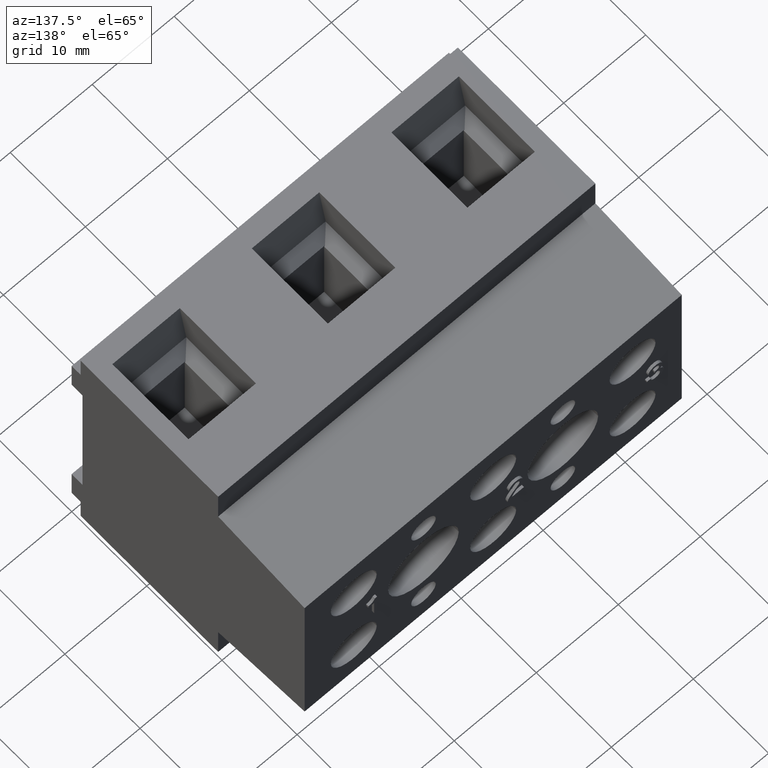
[diagram: clean part render]
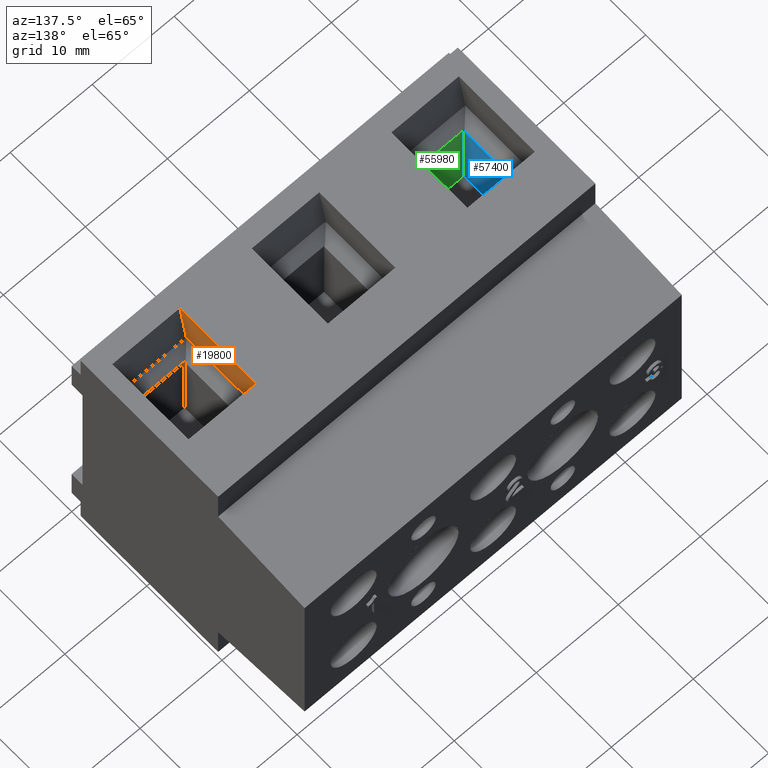
[diagram: same view with three faces highlighted in distinct colors, each labeled with its STEP entity id]
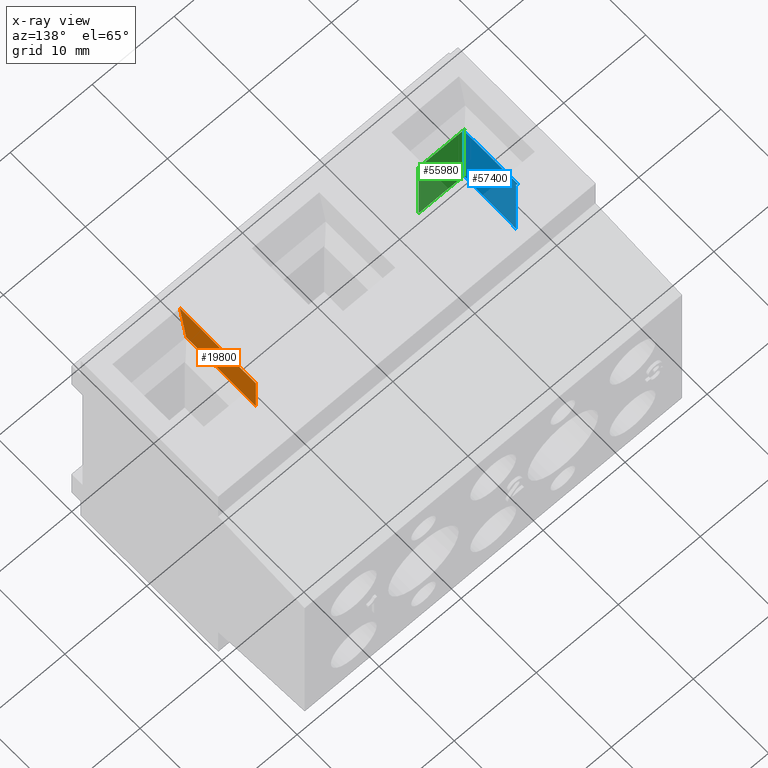
[diagram: x-ray of the same camera — body ghosted, the three highlighted faces saturated]
A machine part, auxiliary view with three faces highlighted in distinct colors.
The next image is the same camera in x-ray (body ghosted, the three faces saturated) — at least one of them is partly hidden behind the body in this view.
Their STEP definitions:

[orange] entity #19800 — the highlighted planar face has unit normal (1, 0, 0).
#16320=CARTESIAN_POINT('',(-203.409574468087,131.425531914894,35.9));
#16330=DIRECTION('',(0.,-1.,0.));
#16340=VECTOR('',#16330,1.);
#16350=LINE('',#16320,#16340);
#16360=CARTESIAN_POINT('',(-203.409574468087,103.275531914894,35.9));
#16370=VERTEX_POINT('',#16360);
#16380=CARTESIAN_POINT('',(-203.409574468087,98.4255319148938,35.9));
#16390=VERTEX_POINT('',#16380);
#16400=EDGE_CURVE('',#16370,#16390,#16350,.T.);
#18790=CARTESIAN_POINT('',(-208.459574468087,103.275531914894,35.9));
#18800=DIRECTION('',(-1.,0.,0.));
#18810=VECTOR('',#18800,1.);
#18820=LINE('',#18790,#18810);
#18830=CARTESIAN_POINT('',(-194.159574468087,103.275531914894,35.9));
#18840=VERTEX_POINT('',#18830);
#18850=EDGE_CURVE('',#18840,#16370,#18820,.T.);
#19360=CARTESIAN_POINT('',(-194.134574468087,103.250531914894,35.9));
#19370=VERTEX_POINT('',#19360);
#19400=CARTESIAN_POINT('',(-208.459574468087,117.575531914894,35.9));
#19410=DIRECTION('',(-0.707106781186548,0.707106781186547,0.));
#19420=VECTOR('',#19410,1.);
#19430=LINE('',#19400,#19420);
#19440=EDGE_CURVE('',#19370,#18840,#19430,.T.);
#19560=CARTESIAN_POINT('',(-192.109574468087,99.5255319148937,35.9));
#19570=DIRECTION('',(-0.,0.,1.));
#19580=DIRECTION('',(0.,-1.,0.));
#19590=AXIS2_PLACEMENT_3D('',#19560,#19570,#19580);
#19600=PLANE('',#19590);
#19610=ORIENTED_EDGE('',*,*,#19440,.T.);
#19620=CARTESIAN_POINT('',(-196.19090737419,114.912575340359,35.9));
#19630=DIRECTION('',(0.17364817766693,-0.984807753012208,0.));
#19640=VECTOR('',#19630,1.);
#19650=LINE('',#19620,#19640);
#19660=CARTESIAN_POINT('',(-193.283796786169,98.4255319148938,35.9));
#19670=VERTEX_POINT('',#19660);
#19680=EDGE_CURVE('',#19370,#19670,#19650,.T.);
#19690=ORIENTED_EDGE('',*,*,#19680,.F.);
#19700=CARTESIAN_POINT('',(-208.459574468087,98.4255319148938,35.9));
#19710=DIRECTION('',(1.,0.,0.));
#19720=VECTOR('',#19710,1.);
#19730=LINE('',#19700,#19720);
#19740=EDGE_CURVE('',#16390,#19670,#19730,.T.);
#19750=ORIENTED_EDGE('',*,*,#19740,.T.);
#19760=ORIENTED_EDGE('',*,*,#16400,.T.);
#19770=ORIENTED_EDGE('',*,*,#18850,.T.);
#19780=EDGE_LOOP('',(#19770,#19760,#19750,#19690,#19610));
#19790=FACE_OUTER_BOUND('',#19780,.T.);
#19800=ADVANCED_FACE('',(#19790),#19600,.T.);

[blue] entity #57400 — the highlighted planar face has unit normal (1, 0, 0).
#55570=CARTESIAN_POINT('',(-195.409574468087,131.425531914894,
3.22500000000001));
#55580=DIRECTION('',(0.,-1.,0.));
#55590=VECTOR('',#55580,1.);
#55600=LINE('',#55570,#55590);
#55610=CARTESIAN_POINT('',(-195.409574468087,114.252305127337,
3.22500000000001));
#55620=VERTEX_POINT('',#55610);
#55630=CARTESIAN_POINT('',(-195.409574468087,104.625531914894,
3.22500000000001));
#55640=VERTEX_POINT('',#55630);
#55650=EDGE_CURVE('',#55620,#55640,#55600,.T.);
#56870=CARTESIAN_POINT('',(-202.359574468087,114.519297195968,
3.22500000000001));
#56880=VERTEX_POINT('',#56870);
#56930=CARTESIAN_POINT('',(-206.409574468087,114.674882502148,
3.22500000000001));
#56940=DIRECTION('',(0.999262916410621,-0.0383878090875199,0.));
#56950=VECTOR('',#56940,1.);
#56960=LINE('',#56930,#56950);
#56970=EDGE_CURVE('',#56880,#55620,#56960,.T.);
#57090=CARTESIAN_POINT('',(-192.309574468087,106.125531914894,
3.22500000000001));
#57100=DIRECTION('',(0.,-0.,1.));
#57110=DIRECTION('',(0.,1.,0.));
#57120=AXIS2_PLACEMENT_3D('',#57090,#57100,#57110);
#57130=PLANE('',#57120);
#57140=ORIENTED_EDGE('',*,*,#55650,.F.);
#57150=CARTESIAN_POINT('',(-206.409574468087,104.625531914894,
3.22500000000001));
#57160=DIRECTION('',(1.,0.,0.));
#57170=VECTOR('',#57160,1.);
#57180=LINE('',#57150,#57170);
#57190=CARTESIAN_POINT('',(-202.648249602682,104.625531914894,
3.22500000000001));
#57200=VERTEX_POINT('',#57190);
#57210=EDGE_CURVE('',#57200,#55640,#57180,.T.);
#57220=ORIENTED_EDGE('',*,*,#57210,.T.);
#57230=CARTESIAN_POINT('',(-187.1752623884,131.425531914894,
3.22500000000001));
#57240=DIRECTION('',(0.5,0.866025403784439,0.));
#57250=VECTOR('',#57240,1.);
#57260=LINE('',#57230,#57250);
#57270=CARTESIAN_POINT('',(-202.359574468087,105.125531914894,
3.22500000000001));
#57280=VERTEX_POINT('',#57270);
#57290=EDGE_CURVE('',#57200,#57280,#57260,.T.);
#57300=ORIENTED_EDGE('',*,*,#57290,.F.);
#57310=CARTESIAN_POINT('',(-202.359574468087,131.425531914894,
3.22500000000001));
#57320=DIRECTION('',(0.,1.,0.));
#57330=VECTOR('',#57320,1.);
#57340=LINE('',#57310,#57330);
#57350=EDGE_CURVE('',#57280,#56880,#57340,.T.);
#57360=ORIENTED_EDGE('',*,*,#57350,.F.);
#57370=ORIENTED_EDGE('',*,*,#56970,.F.);
#57380=EDGE_LOOP('',(#57370,#57360,#57300,#57220,#57140));
#57390=FACE_OUTER_BOUND('',#57380,.T.);
#57400=ADVANCED_FACE('',(#57390),#57130,.T.);

[green] entity #55980 — the highlighted planar face has unit normal (0, 1, 0).
#54920=CARTESIAN_POINT('',(-195.409574468087,104.525531914894,3.125));
#54930=VERTEX_POINT('',#54920);
#54960=CARTESIAN_POINT('',(-195.409574468087,104.525531914894,
-2.52499999999999));
#54970=DIRECTION('',(0.,0.,1.));
#54980=VECTOR('',#54970,1.);
#54990=LINE('',#54960,#54980);
#55000=CARTESIAN_POINT('',(-195.409574468087,104.525531914894,
8.82500000000001));
#55010=VERTEX_POINT('',#55000);
#55020=EDGE_CURVE('',#54930,#55010,#54990,.T.);
#55520=CARTESIAN_POINT('',(-195.409574468087,114.880531914894,
2.03416390908733));
#55530=DIRECTION('',(-1.,0.,0.));
#55540=DIRECTION('',(0.,0.,1.));
#55550=AXIS2_PLACEMENT_3D('',#55520,#55530,#55540);
#55560=PLANE('',#55550);
#55570=CARTESIAN_POINT('',(-195.409574468087,131.425531914894,
3.22500000000001));
#55580=DIRECTION('',(0.,-1.,0.));
#55590=VECTOR('',#55580,1.);
#55600=LINE('',#55570,#55590);
#55610=CARTESIAN_POINT('',(-195.409574468087,114.252305127337,
3.22500000000001));
#55620=VERTEX_POINT('',#55610);
#55630=CARTESIAN_POINT('',(-195.409574468087,104.625531914894,
3.22500000000001));
#55640=VERTEX_POINT('',#55630);
#55650=EDGE_CURVE('',#55620,#55640,#55600,.T.);
#55660=ORIENTED_EDGE('',*,*,#55650,.T.);
#55670=CARTESIAN_POINT('',(-195.409574468087,114.252305127337,
-2.52499999999999));
#55680=DIRECTION('',(0.,0.,1.));
#55690=VECTOR('',#55680,1.);
#55700=LINE('',#55670,#55690);
#55710=CARTESIAN_POINT('',(-195.409574468087,114.252305127337,
8.72500000000001));
#55720=VERTEX_POINT('',#55710);
#55730=EDGE_CURVE('',#55620,#55720,#55700,.T.);
#55740=ORIENTED_EDGE('',*,*,#55730,.F.);
#55750=CARTESIAN_POINT('',(-195.409574468087,131.425531914894,
8.72500000000001));
#55760=DIRECTION('',(0.,-1.,0.));
#55770=VECTOR('',#55760,1.);
#55780=LINE('',#55750,#55770);
#55790=CARTESIAN_POINT('',(-195.409574468087,104.625531914894,
8.72500000000001));
#55800=VERTEX_POINT('',#55790);
#55810=EDGE_CURVE('',#55720,#55800,#55780,.T.);
#55820=ORIENTED_EDGE('',*,*,#55810,.F.);
#55830=CARTESIAN_POINT('',(-195.409574468087,131.425531914894,-18.075));
#55840=DIRECTION('',(0.,-0.707106781186548,0.707106781186547));
#55850=VECTOR('',#55840,1.);
#55860=LINE('',#55830,#55850);
#55870=EDGE_CURVE('',#55800,#55010,#55860,.T.);
#55880=ORIENTED_EDGE('',*,*,#55870,.F.);
#55890=ORIENTED_EDGE('',*,*,#55020,.T.);
#55900=CARTESIAN_POINT('',(-195.409574468087,131.425531914894,30.025));
#55910=DIRECTION('',(0.,0.707106781186548,0.707106781186547));
#55920=VECTOR('',#55910,1.);
#55930=LINE('',#55900,#55920);
#55940=EDGE_CURVE('',#54930,#55640,#55930,.T.);
#55950=ORIENTED_EDGE('',*,*,#55940,.F.);
#55960=EDGE_LOOP('',(#55950,#55890,#55880,#55820,#55740,#55660));
#55970=FACE_OUTER_BOUND('',#55960,.T.);
#55980=ADVANCED_FACE('',(#55970),#55560,.T.);